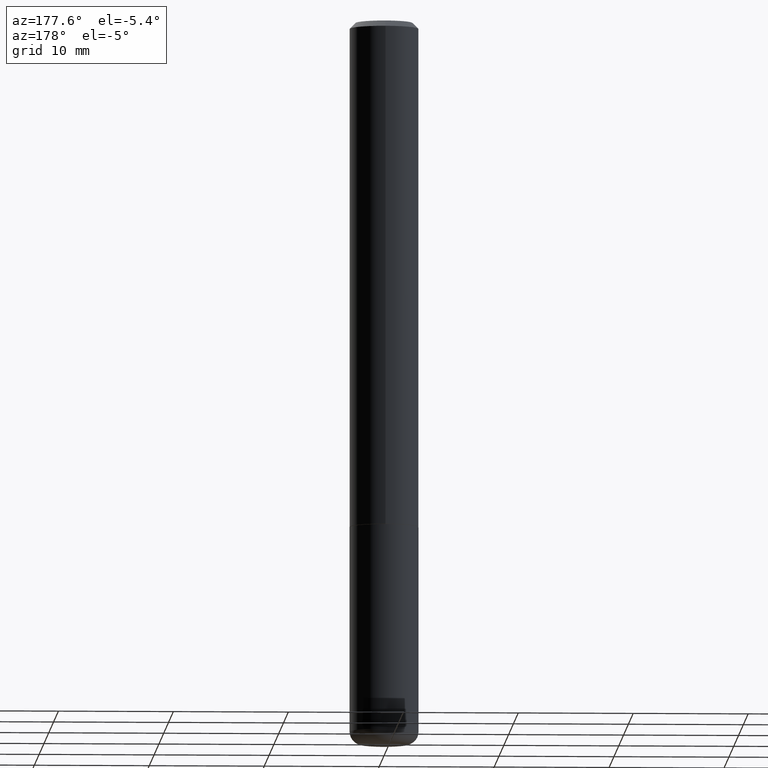
[diagram: clean part render]
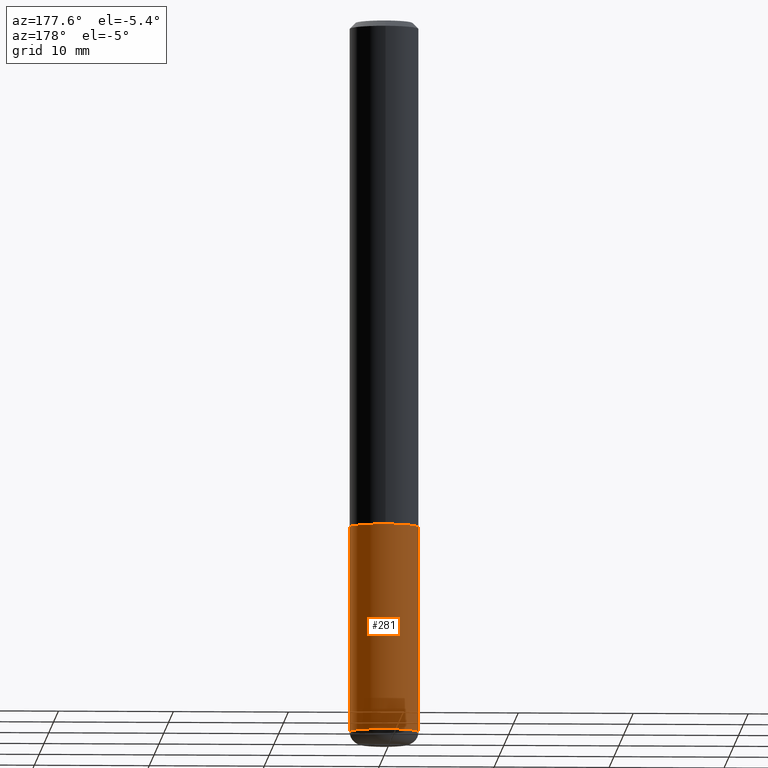
[diagram: same view with one face highlighted and labeled with its STEP entity id]
A machine part, auxiliary view. The second image highlights one B-rep face of the part: STEP entity #281.
In plain terms, the highlighted cylindrical surface (edge-blend (fillet) strip) has radius 2.9997 mm, axis along (-0, 0, 1).
Its self-contained STEP definition (entity closure, byte-faithful):
#18 = LINE ( 'NONE', #238, #270 ) ;
#29 = CARTESIAN_POINT ( 'NONE',  ( 0.000000000000000000, 0.000000000000000000, 0.000000000000000000 ) ) ;
#30 = ORIENTED_EDGE ( 'NONE', *, *, #151, .F. ) ;
#36 = ORIENTED_EDGE ( 'NONE', *, *, #167, .F. ) ;
#42 = ORIENTED_EDGE ( 'NONE', *, *, #272, .T. ) ;
#49 = CARTESIAN_POINT ( 'NONE',  ( 0.1181000000000001632, -9.327841544853347056E-15, -2.435400000000000453 ) ) ;
#53 = EDGE_LOOP ( 'NONE', ( #300, #42, #36, #30 ) ) ;
#57 = AXIS2_PLACEMENT_3D ( 'NONE', #29, #150, #96 ) ;
#61 = VERTEX_POINT ( 'NONE', #355 ) ;
#85 = EDGE_CURVE ( 'NONE', #414, #102, #400, .T. ) ;
#87 = VECTOR ( 'NONE', #369, 39.37007874015748143 ) ;
#91 = CIRCLE ( 'NONE', #313, 0.1180999999999999966 ) ;
#96 = DIRECTION ( 'NONE',  ( 1.000000000000000000, -6.982962677686266711E-15, 4.876176775795936353E-29 ) ) ;
#102 = VERTEX_POINT ( 'NONE', #357 ) ;
#112 = LINE ( 'NONE', #137, #87 ) ;
#118 = DIRECTION ( 'NONE',  ( -2.445468806185136877E-29, 3.491481338843145188E-15, 1.000000000000000000 ) ) ;
#126 = CARTESIAN_POINT ( 'NONE',  ( -0.1180999999999999966, -6.436572417015612133E-15, -1.732300000000000173 ) ) ;
#137 = CARTESIAN_POINT ( 'NONE',  ( 0.1180999999999999966, -8.246878922347480654E-16, 5.758764772215000440E-30 ) ) ;
#150 = DIRECTION ( 'NONE',  ( -2.445468806185136597E-29, 3.491481338843145583E-15, 1.000000000000000000 ) ) ;
#151 = EDGE_CURVE ( 'NONE', #414, #61, #112, .T. ) ;
#167 = EDGE_CURVE ( 'NONE', #61, #348, #91, .T. ) ;
#204 = DIRECTION ( 'NONE',  ( 1.000000000000000000, -6.982962677686265133E-15, 0.000000000000000000 ) ) ;
#219 = CARTESIAN_POINT ( 'NONE',  ( 5.955694730583282706E-29, -8.503153652618598793E-15, -2.435400000000000453 ) ) ;
#227 = CARTESIAN_POINT ( 'NONE',  ( 4.236285612954512953E-29, -6.048293123277982656E-15, -1.732300000000000173 ) ) ;
#238 = CARTESIAN_POINT ( 'NONE',  ( -0.1180999999999999966, 8.391509709326782957E-16, -5.809262341591043784E-30 ) ) ;
#242 = CYLINDRICAL_SURFACE ( 'NONE', #57, 0.1180999999999999966 ) ;
#253 = DIRECTION ( 'NONE',  ( 1.000000000000000000, -6.982962677686273021E-15, 0.000000000000000000 ) ) ;
#260 = DIRECTION ( 'NONE',  ( -2.445468806185136597E-29, 3.491481338843145583E-15, 1.000000000000000000 ) ) ;
#270 = VECTOR ( 'NONE', #118, 39.37007874015748143 ) ;
#272 = EDGE_CURVE ( 'NONE', #102, #348, #18, .T. ) ;
#281 = ADVANCED_FACE ( 'NONE', ( #375 ), #242, .T. ) ;
#283 = DIRECTION ( 'NONE',  ( -2.445468806185136597E-29, 3.491481338843145583E-15, 1.000000000000000000 ) ) ;
#290 = AXIS2_PLACEMENT_3D ( 'NONE', #219, #283, #253 ) ;
#300 = ORIENTED_EDGE ( 'NONE', *, *, #85, .T. ) ;
#313 = AXIS2_PLACEMENT_3D ( 'NONE', #227, #260, #204 ) ;
#348 = VERTEX_POINT ( 'NONE', #126 ) ;
#355 = CARTESIAN_POINT ( 'NONE',  ( 0.1180999999999999966, -6.872981015512730130E-15, -1.732300000000000173 ) ) ;
#357 = CARTESIAN_POINT ( 'NONE',  ( -0.1181000000000001632, -7.664002681685918229E-15, -2.435400000000000453 ) ) ;
#369 = DIRECTION ( 'NONE',  ( -2.445468806185136877E-29, 3.491481338843145188E-15, 1.000000000000000000 ) ) ;
#375 = FACE_OUTER_BOUND ( 'NONE', #53, .T. ) ;
#400 = CIRCLE ( 'NONE', #290, 0.1180999999999999966 ) ;
#414 = VERTEX_POINT ( 'NONE', #49 ) ;